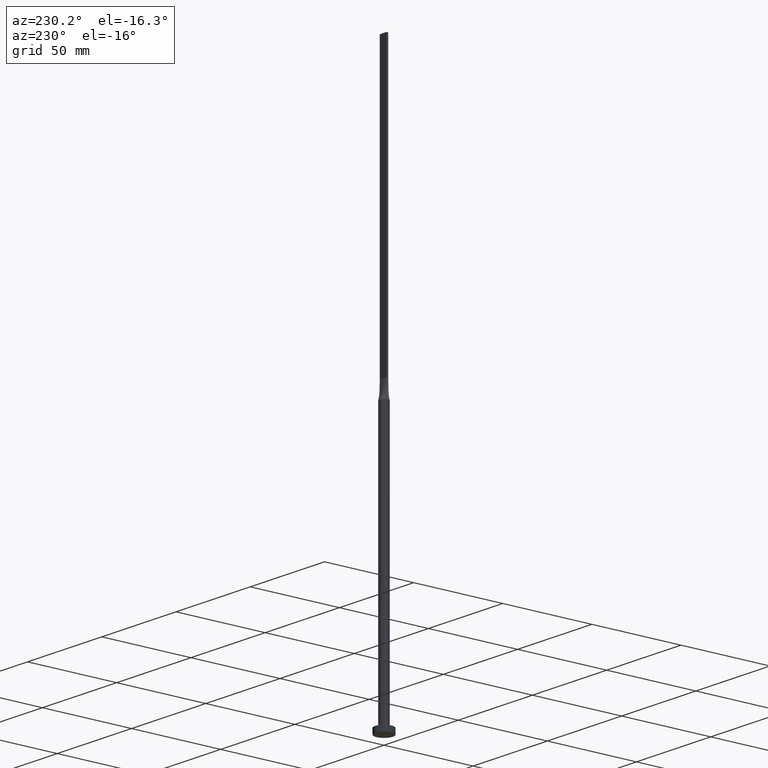
[diagram: clean part render]
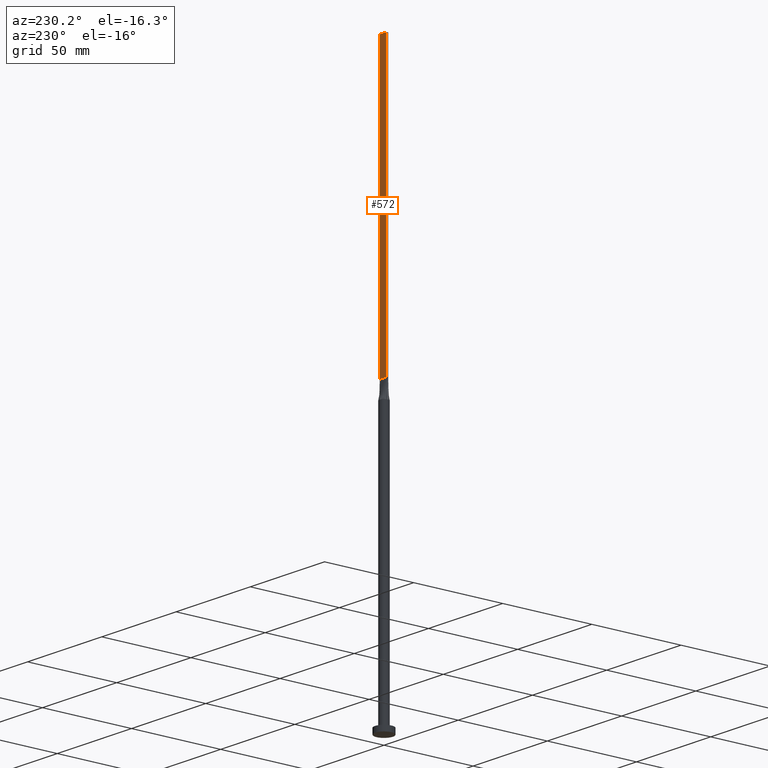
[diagram: same view with one face highlighted and labeled with its STEP entity id]
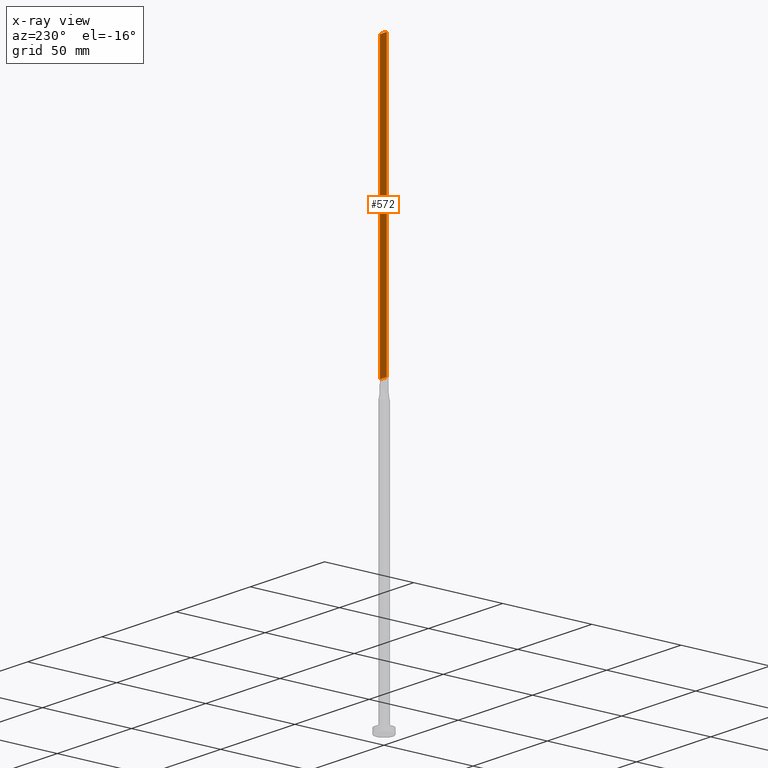
[diagram: x-ray of the same camera — body ghosted, the highlighted face saturated]
A machine part, auxiliary view. The second image highlights one B-rep face of the part: STEP entity #572.
The next image is the same camera in x-ray: the body ghosted, the highlighted face saturated — about 0% of this face is hidden behind the body in this view.
In plain terms, the highlighted planar face has unit normal (0, -1, 0).
Its self-contained STEP definition (entity closure, byte-faithful):
#30 = CARTESIAN_POINT ( 'NONE',  ( 2.249999999999999556, 0.5000000000000002220, 315.0000000000000000 ) ) ;
#35 = DIRECTION ( 'NONE',  ( -1.000000000000000000, -0.000000000000000000, -0.000000000000000000 ) ) ;
#75 = DIRECTION ( 'NONE',  ( 0.000000000000000000, -0.000000000000000000, -1.000000000000000000 ) ) ;
#85 = ORIENTED_EDGE ( 'NONE', *, *, #169, .T. ) ;
#88 = VERTEX_POINT ( 'NONE', #204 ) ;
#94 = VERTEX_POINT ( 'NONE', #530 ) ;
#129 = LINE ( 'NONE', #30, #466 ) ;
#132 = DIRECTION ( 'NONE',  ( -1.000000000000000000, 0.000000000000000000, 0.000000000000000000 ) ) ;
#169 = EDGE_CURVE ( 'NONE', #465, #317, #222, .T. ) ;
#198 = EDGE_CURVE ( 'NONE', #88, #94, #129, .T. ) ;
#204 = CARTESIAN_POINT ( 'NONE',  ( 2.249999999999999556, 0.5000000000000002220, 315.0000000000000000 ) ) ;
#219 = CARTESIAN_POINT ( 'NONE',  ( -2.249999999999999556, 0.5000000000000002220, 160.0000000000000000 ) ) ;
#222 = LINE ( 'NONE', #219, #338 ) ;
#246 = CARTESIAN_POINT ( 'NONE',  ( 2.249999999999999556, 0.5000000000000002220, 160.0000000000000000 ) ) ;
#272 = ORIENTED_EDGE ( 'NONE', *, *, #454, .F. ) ;
#287 = VECTOR ( 'NONE', #344, 1000.000000000000000 ) ;
#290 = EDGE_CURVE ( 'NONE', #88, #465, #577, .T. ) ;
#306 = DIRECTION ( 'NONE',  ( 0.000000000000000000, -1.000000000000000000, 0.000000000000000000 ) ) ;
#309 = FACE_OUTER_BOUND ( 'NONE', #546, .T. ) ;
#317 = VERTEX_POINT ( 'NONE', #467 ) ;
#338 = VECTOR ( 'NONE', #35, 1000.000000000000000 ) ;
#344 = DIRECTION ( 'NONE',  ( -0.000000000000000000, -0.000000000000000000, -1.000000000000000000 ) ) ;
#355 = CARTESIAN_POINT ( 'NONE',  ( 2.249999999999999556, 0.5000000000000002220, 315.0000000000000000 ) ) ;
#372 = AXIS2_PLACEMENT_3D ( 'NONE', #489, #306, #75 ) ;
#396 = VECTOR ( 'NONE', #538, 1000.000000000000000 ) ;
#402 = ORIENTED_EDGE ( 'NONE', *, *, #198, .F. ) ;
#412 = ORIENTED_EDGE ( 'NONE', *, *, #290, .T. ) ;
#454 = EDGE_CURVE ( 'NONE', #94, #317, #561, .T. ) ;
#465 = VERTEX_POINT ( 'NONE', #246 ) ;
#466 = VECTOR ( 'NONE', #132, 1000.000000000000000 ) ;
#467 = CARTESIAN_POINT ( 'NONE',  ( -2.249999999999999556, 0.5000000000000002220, 160.0000000000000000 ) ) ;
#489 = CARTESIAN_POINT ( 'NONE',  ( 2.249999999999999556, 0.5000000000000002220, 315.0000000000000000 ) ) ;
#522 = CARTESIAN_POINT ( 'NONE',  ( -2.249999999999999556, 0.5000000000000002220, 315.0000000000000000 ) ) ;
#530 = CARTESIAN_POINT ( 'NONE',  ( -2.249999999999999556, 0.5000000000000002220, 315.0000000000000000 ) ) ;
#538 = DIRECTION ( 'NONE',  ( -0.000000000000000000, -0.000000000000000000, -1.000000000000000000 ) ) ;
#546 = EDGE_LOOP ( 'NONE', ( #85, #272, #402, #412 ) ) ;
#561 = LINE ( 'NONE', #522, #287 ) ;
#572 = ADVANCED_FACE ( 'NONE', ( #309 ), #575, .F. ) ;
#575 = PLANE ( 'NONE',  #372 ) ;
#577 = LINE ( 'NONE', #355, #396 ) ;